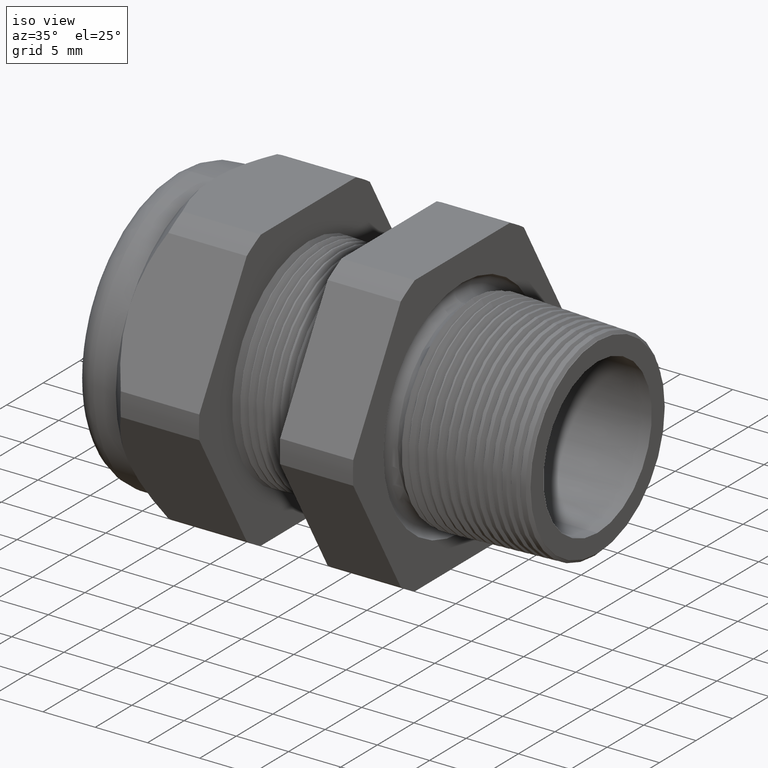
[diagram: clean part render]
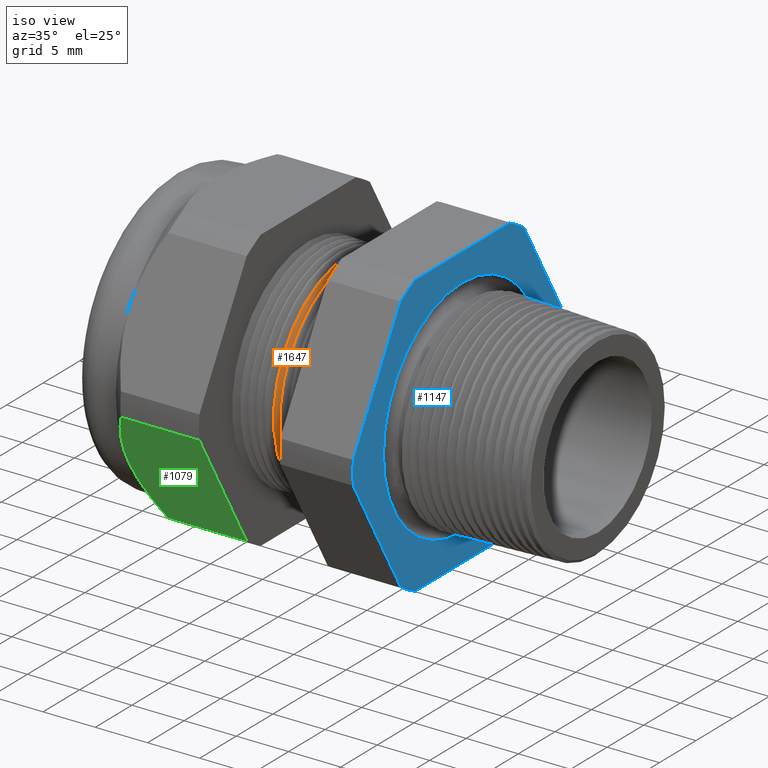
[diagram: same view with three faces highlighted in distinct colors, each labeled with its STEP entity id]
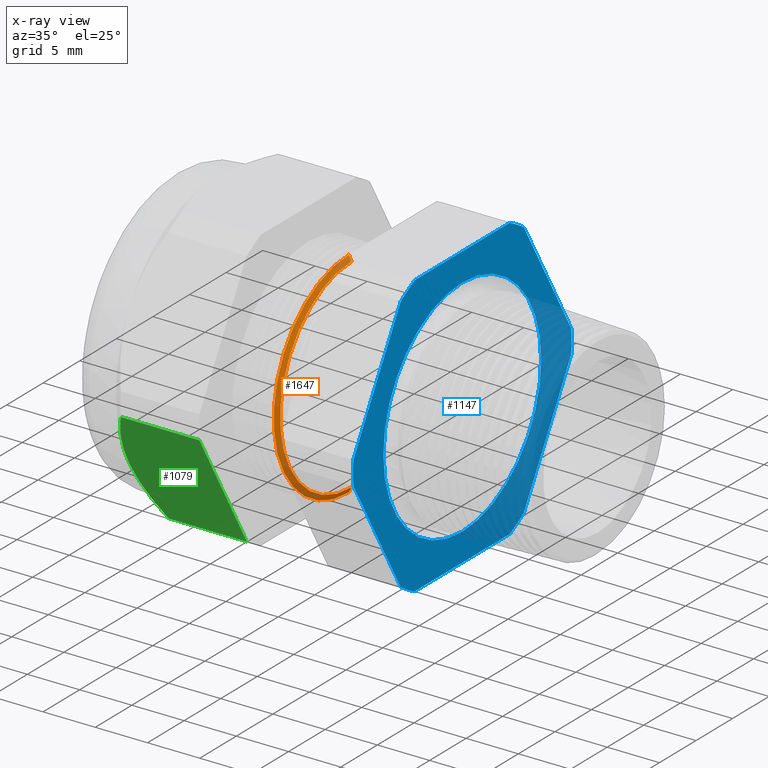
[diagram: x-ray of the same camera — body ghosted, the three highlighted faces saturated]
A machine part, iso view with three faces highlighted in distinct colors.
The next image is the same camera in x-ray (body ghosted, the three faces saturated) — at least one of them is partly hidden behind the body in this view.
Their STEP definitions:

[orange] entity #1647 — the highlighted conical surface has half-angle 62 deg.
#139 = VERTEX_POINT ( 'NONE', #2247 ) ;
#141 = EDGE_CURVE ( 'NONE', #186, #139, #2246, .T. ) ;
#145 = EDGE_CURVE ( 'NONE', #252, #146, #2241, .T. ) ;
#146 = VERTEX_POINT ( 'NONE', #2232 ) ;
#186 = VERTEX_POINT ( 'NONE', #2340 ) ;
#252 = VERTEX_POINT ( 'NONE', #2467 ) ;
#943 = EDGE_CURVE ( 'NONE', #139, #146, #3745, .T. ) ;
#1573 = EDGE_LOOP ( 'NONE', ( #1574, #1575, #1577, #1578 ) ) ;
#1574 = ORIENTED_EDGE ( 'NONE', *, *, #145, .F. ) ;
#1575 = ORIENTED_EDGE ( 'NONE', *, *, #1576, .F. ) ;
#1576 = EDGE_CURVE ( 'NONE', #186, #252, #4912, .T. ) ;
#1577 = ORIENTED_EDGE ( 'NONE', *, *, #141, .T. ) ;
#1578 = ORIENTED_EDGE ( 'NONE', *, *, #943, .T. ) ;
#1647 = ADVANCED_FACE ( 'NONE', ( #5017 ), #5016, .T. ) ;
#2232 = CARTESIAN_POINT ( 'NONE',  ( -0.7374771129433931300, 4.957090523884741100E-017, -0.4046627847513250600 ) ) ;
#2233 = DIRECTION ( 'NONE',  ( -0.4694715627859021900, 1.081298943409537900E-016, -0.8829475928589208800 ) ) ;
#2234 = VECTOR ( 'NONE', #2233, 39.37007874015748100 ) ;
#2235 = CARTESIAN_POINT ( 'NONE',  ( -0.7403149606299210800, 5.021051876504148100E-017, -0.4099999999999999800 ) ) ;
#2241 = LINE ( 'NONE', #2235, #2234 ) ;
#2243 = DIRECTION ( 'NONE',  ( -0.4694715627859021900, 0.0000000000000000000, 0.8829475928589208800 ) ) ;
#2244 = VECTOR ( 'NONE', #2243, 39.37007874015748100 ) ;
#2245 = CARTESIAN_POINT ( 'NONE',  ( -0.7403149606299210800, 0.0000000000000000000, 0.4099999999999999800 ) ) ;
#2246 = LINE ( 'NONE', #2245, #2244 ) ;
#2247 = CARTESIAN_POINT ( 'NONE',  ( -0.7374771129433931300, 0.0000000000000000000, 0.4046627847513250600 ) ) ;
#2340 = CARTESIAN_POINT ( 'NONE',  ( -0.7267624839723553200, 0.0000000000000000000, 0.3845114984791284100 ) ) ;
#2467 = CARTESIAN_POINT ( 'NONE',  ( -0.7267624839723553200, 4.832298799637908300E-017, -0.3845114984791284100 ) ) ;
#3744 = AXIS2_PLACEMENT_3D ( 'NONE', #3750, #3804, #3803 ) ;
#3745 = CIRCLE ( 'NONE', #3744, 0.4046627847513250600 ) ;
#3750 = CARTESIAN_POINT ( 'NONE',  ( -0.7374771129433931300, 0.0000000000000000000, 0.0000000000000000000 ) ) ;
#3803 = DIRECTION ( 'NONE',  ( 0.0000000000000000000, 0.0000000000000000000, 1.000000000000000000 ) ) ;
#3804 = DIRECTION ( 'NONE',  ( 1.000000000000000000, 0.0000000000000000000, 0.0000000000000000000 ) ) ;
#4909 = DIRECTION ( 'NONE',  ( 0.0000000000000000000, 0.0000000000000000000, -1.000000000000000000 ) ) ;
#4910 = DIRECTION ( 'NONE',  ( 1.000000000000000000, 0.0000000000000000000, 0.0000000000000000000 ) ) ;
#4911 = AXIS2_PLACEMENT_3D ( 'NONE', #4917, #4910, #4909 ) ;
#4912 = CIRCLE ( 'NONE', #4911, 0.3845114984791284100 ) ;
#4917 = CARTESIAN_POINT ( 'NONE',  ( -0.7267624839723553200, 0.0000000000000000000, 0.0000000000000000000 ) ) ;
#5011 = DIRECTION ( 'NONE',  ( 0.0000000000000000000, 0.0000000000000000000, 1.000000000000000000 ) ) ;
#5012 = DIRECTION ( 'NONE',  ( -1.000000000000000000, 0.0000000000000000000, 0.0000000000000000000 ) ) ;
#5013 = CARTESIAN_POINT ( 'NONE',  ( -0.7403149606299210800, 0.0000000000000000000, 0.0000000000000000000 ) ) ;
#5014 = AXIS2_PLACEMENT_3D ( 'NONE', #5013, #5012, #5011 ) ;
#5016 = CONICAL_SURFACE ( 'NONE', #5014, 0.4099999999999999800, 1.082104136236471400 ) ;
#5017 = FACE_OUTER_BOUND ( 'NONE', #1573, .T. ) ;

[blue] entity #1147 — the highlighted planar face has unit normal (1, 0, 0).
#79 = VERTEX_POINT ( 'NONE', #2154 ) ;
#80 = EDGE_CURVE ( 'NONE', #82, #79, #2153, .T. ) ;
#82 = VERTEX_POINT ( 'NONE', #2148 ) ;
#1132 = VERTEX_POINT ( 'NONE', #4170 ) ;
#1133 = ORIENTED_EDGE ( 'NONE', *, *, #1134, .T. ) ;
#1134 = EDGE_CURVE ( 'NONE', #1132, #1135, #3681, .T. ) ;
#1135 = VERTEX_POINT ( 'NONE', #4230 ) ;
#1136 = ORIENTED_EDGE ( 'NONE', *, *, #1137, .T. ) ;
#1137 = EDGE_CURVE ( 'NONE', #1135, #1138, #4229, .T. ) ;
#1138 = VERTEX_POINT ( 'NONE', #4225 ) ;
#1139 = ORIENTED_EDGE ( 'NONE', *, *, #1140, .T. ) ;
#1140 = EDGE_CURVE ( 'NONE', #1138, #1141, #4224, .T. ) ;
#1141 = VERTEX_POINT ( 'NONE', #4219 ) ;
#1142 = ORIENTED_EDGE ( 'NONE', *, *, #1143, .T. ) ;
#1143 = EDGE_CURVE ( 'NONE', #1141, #1144, #4218, .T. ) ;
#1144 = VERTEX_POINT ( 'NONE', #4214 ) ;
#1145 = ORIENTED_EDGE ( 'NONE', *, *, #1202, .T. ) ;
#1146 = VERTEX_POINT ( 'NONE', #4213 ) ;
#1147 = ADVANCED_FACE ( 'NONE', ( #4212, #4211 ), #4210, .T. ) ;
#1148 = EDGE_LOOP ( 'NONE', ( #1149, #1151 ) ) ;
#1149 = ORIENTED_EDGE ( 'NONE', *, *, #1150, .F. ) ;
#1150 = EDGE_CURVE ( 'NONE', #79, #82, #4205, .T. ) ;
#1151 = ORIENTED_EDGE ( 'NONE', *, *, #80, .F. ) ;
#1152 = EDGE_LOOP ( 'NONE', ( #1153, #1157, #1160, #1133, #1136, #1139, #1142, #1145, #1203, #1206, #1209, #1212 ) ) ;
#1153 = ORIENTED_EDGE ( 'NONE', *, *, #1154, .T. ) ;
#1154 = EDGE_CURVE ( 'NONE', #1155, #1156, #4262, .T. ) ;
#1155 = VERTEX_POINT ( 'NONE', #4258 ) ;
#1156 = VERTEX_POINT ( 'NONE', #4257 ) ;
#1157 = ORIENTED_EDGE ( 'NONE', *, *, #1158, .T. ) ;
#1158 = EDGE_CURVE ( 'NONE', #1156, #1159, #4256, .T. ) ;
#1159 = VERTEX_POINT ( 'NONE', #4251 ) ;
#1160 = ORIENTED_EDGE ( 'NONE', *, *, #1161, .T. ) ;
#1161 = EDGE_CURVE ( 'NONE', #1159, #1132, #4250, .T. ) ;
#1202 = EDGE_CURVE ( 'NONE', #1144, #1146, #4345, .T. ) ;
#1203 = ORIENTED_EDGE ( 'NONE', *, *, #1204, .T. ) ;
#1204 = EDGE_CURVE ( 'NONE', #1146, #1205, #4340, .T. ) ;
#1205 = VERTEX_POINT ( 'NONE', #4336 ) ;
#1206 = ORIENTED_EDGE ( 'NONE', *, *, #1207, .T. ) ;
#1207 = EDGE_CURVE ( 'NONE', #1205, #1208, #4335, .T. ) ;
#1208 = VERTEX_POINT ( 'NONE', #4330 ) ;
#1209 = ORIENTED_EDGE ( 'NONE', *, *, #1210, .T. ) ;
#1210 = EDGE_CURVE ( 'NONE', #1208, #1211, #4329, .T. ) ;
#1211 = VERTEX_POINT ( 'NONE', #4325 ) ;
#1212 = ORIENTED_EDGE ( 'NONE', *, *, #1213, .T. ) ;
#1213 = EDGE_CURVE ( 'NONE', #1211, #1155, #4387, .T. ) ;
#2148 = CARTESIAN_POINT ( 'NONE',  ( -0.3100000000000000000, 5.197106747389359900E-017, 0.4243759711786115300 ) ) ;
#2149 = DIRECTION ( 'NONE',  ( 0.0000000000000000000, 0.0000000000000000000, -1.000000000000000000 ) ) ;
#2150 = DIRECTION ( 'NONE',  ( 1.000000000000000000, 0.0000000000000000000, 0.0000000000000000000 ) ) ;
#2151 = CARTESIAN_POINT ( 'NONE',  ( -0.3100000000000000000, 0.0000000000000000000, 0.0000000000000000000 ) ) ;
#2152 = AXIS2_PLACEMENT_3D ( 'NONE', #2151, #2150, #2149 ) ;
#2153 = CIRCLE ( 'NONE', #2152, 0.4243759711786115300 ) ;
#2154 = CARTESIAN_POINT ( 'NONE',  ( -0.3100000000000000000, 0.0000000000000000000, -0.4243759711786115300 ) ) ;
#3681 = CIRCLE ( 'NONE', #3930, 0.5882999999999999300 ) ;
#3930 = AXIS2_PLACEMENT_3D ( 'NONE', #4169, #4232, #4231 ) ;
#4169 = CARTESIAN_POINT ( 'NONE',  ( -0.3100000000000000000, 0.0000000000000000000, 0.0000000000000000000 ) ) ;
#4170 = CARTESIAN_POINT ( 'NONE',  ( -0.3099999999999998300, 0.3313250556190263700, 0.4861281698472626500 ) ) ;
#4201 = DIRECTION ( 'NONE',  ( 0.0000000000000000000, 0.0000000000000000000, -1.000000000000000000 ) ) ;
#4202 = DIRECTION ( 'NONE',  ( 1.000000000000000000, 0.0000000000000000000, 0.0000000000000000000 ) ) ;
#4203 = CARTESIAN_POINT ( 'NONE',  ( -0.3100000000000000000, 0.0000000000000000000, 0.0000000000000000000 ) ) ;
#4204 = AXIS2_PLACEMENT_3D ( 'NONE', #4203, #4202, #4201 ) ;
#4205 = CIRCLE ( 'NONE', #4204, 0.4243759711786115300 ) ;
#4206 = DIRECTION ( 'NONE',  ( 0.0000000000000000000, 0.0000000000000000000, -1.000000000000000000 ) ) ;
#4207 = DIRECTION ( 'NONE',  ( 1.000000000000000000, 0.0000000000000000000, 0.0000000000000000000 ) ) ;
#4208 = CARTESIAN_POINT ( 'NONE',  ( -0.3100000000000000000, 1.060000000000000100, 0.0000000000000000000 ) ) ;
#4209 = AXIS2_PLACEMENT_3D ( 'NONE', #4208, #4207, #4206 ) ;
#4210 = PLANE ( 'NONE',  #4209 ) ;
#4211 = FACE_OUTER_BOUND ( 'NONE', #1152, .T. ) ;
#4212 = FACE_BOUND ( 'NONE', #1148, .T. ) ;
#4213 = CARTESIAN_POINT ( 'NONE',  ( -0.3099999999999998300, -0.5866618723924791300, -0.04387183015273715000 ) ) ;
#4214 = CARTESIAN_POINT ( 'NONE',  ( -0.3099999999999998300, -0.5866618723924791300, 0.04387183015273703200 ) ) ;
#4215 = DIRECTION ( 'NONE',  ( 0.0000000000000000000, -0.4999999999999998300, -0.8660254037844388200 ) ) ;
#4216 = VECTOR ( 'NONE', #4215, 39.37007874015748100 ) ;
#4217 = CARTESIAN_POINT ( 'NONE',  ( -0.3100000000000000000, -0.1939934640057525700, 0.7239934640057522600 ) ) ;
#4218 = LINE ( 'NONE', #4217, #4216 ) ;
#4219 = CARTESIAN_POINT ( 'NONE',  ( -0.3099999999999998300, -0.3313250556190262000, 0.4861281698472627600 ) ) ;
#4220 = DIRECTION ( 'NONE',  ( 0.0000000000000000000, 0.0000000000000000000, -1.000000000000000000 ) ) ;
#4221 = DIRECTION ( 'NONE',  ( 1.000000000000000000, 0.0000000000000000000, 0.0000000000000000000 ) ) ;
#4222 = CARTESIAN_POINT ( 'NONE',  ( -0.3100000000000000000, 0.0000000000000000000, 0.0000000000000000000 ) ) ;
#4223 = AXIS2_PLACEMENT_3D ( 'NONE', #4222, #4221, #4220 ) ;
#4224 = CIRCLE ( 'NONE', #4223, 0.5882999999999999300 ) ;
#4225 = CARTESIAN_POINT ( 'NONE',  ( -0.3099999999999998300, -0.2553368167734533200, 0.5299999999999999200 ) ) ;
#4226 = DIRECTION ( 'NONE',  ( 0.0000000000000000000, -1.000000000000000000, 0.0000000000000000000 ) ) ;
#4227 = VECTOR ( 'NONE', #4226, 39.37007874015748100 ) ;
#4228 = CARTESIAN_POINT ( 'NONE',  ( -0.3100000000000000000, 1.060000000000000100, 0.5300000000000001400 ) ) ;
#4229 = LINE ( 'NONE', #4228, #4227 ) ;
#4230 = CARTESIAN_POINT ( 'NONE',  ( -0.3099999999999998300, 0.2553368167734530500, 0.5300000000000001400 ) ) ;
#4231 = DIRECTION ( 'NONE',  ( 0.0000000000000000000, 0.0000000000000000000, -1.000000000000000000 ) ) ;
#4232 = DIRECTION ( 'NONE',  ( 1.000000000000000000, 0.0000000000000000000, 0.0000000000000000000 ) ) ;
#4247 = DIRECTION ( 'NONE',  ( 0.0000000000000000000, -0.4999999999999998300, 0.8660254037844386000 ) ) ;
#4248 = VECTOR ( 'NONE', #4247, 39.37007874015748900 ) ;
#4249 = CARTESIAN_POINT ( 'NONE',  ( -0.3100000000000000000, 0.7239934640057524900, -0.1939934640057524000 ) ) ;
#4250 = LINE ( 'NONE', #4249, #4248 ) ;
#4251 = CARTESIAN_POINT ( 'NONE',  ( -0.3099999999999998300, 0.5866618723924789100, 0.04387183015273755900 ) ) ;
#4252 = DIRECTION ( 'NONE',  ( 0.0000000000000000000, 0.0000000000000000000, -1.000000000000000000 ) ) ;
#4253 = DIRECTION ( 'NONE',  ( 1.000000000000000000, 0.0000000000000000000, 0.0000000000000000000 ) ) ;
#4254 = CARTESIAN_POINT ( 'NONE',  ( -0.3100000000000000000, 0.0000000000000000000, 0.0000000000000000000 ) ) ;
#4255 = AXIS2_PLACEMENT_3D ( 'NONE', #4254, #4253, #4252 ) ;
#4256 = CIRCLE ( 'NONE', #4255, 0.5882999999999999300 ) ;
#4257 = CARTESIAN_POINT ( 'NONE',  ( -0.3100000000000000000, 0.5866618723924790200, -0.04387183015273746900 ) ) ;
#4258 = CARTESIAN_POINT ( 'NONE',  ( -0.3099999999999998300, 0.3313250556190264200, -0.4861281698472626500 ) ) ;
#4259 = DIRECTION ( 'NONE',  ( 0.0000000000000000000, 0.4999999999999998300, 0.8660254037844386000 ) ) ;
#4260 = VECTOR ( 'NONE', #4259, 39.37007874015748900 ) ;
#4261 = CARTESIAN_POINT ( 'NONE',  ( -0.3100000000000000000, 0.7239934640057527100, 0.1939934640057523800 ) ) ;
#4262 = LINE ( 'NONE', #4261, #4260 ) ;
#4325 = CARTESIAN_POINT ( 'NONE',  ( -0.3099999999999998300, 0.2553368167734529900, -0.5300000000000001400 ) ) ;
#4326 = DIRECTION ( 'NONE',  ( 0.0000000000000000000, 1.000000000000000000, 0.0000000000000000000 ) ) ;
#4327 = VECTOR ( 'NONE', #4326, 39.37007874015748100 ) ;
#4328 = CARTESIAN_POINT ( 'NONE',  ( -0.3100000000000000000, 1.060000000000000100, -0.5300000000000001400 ) ) ;
#4329 = LINE ( 'NONE', #4328, #4327 ) ;
#4330 = CARTESIAN_POINT ( 'NONE',  ( -0.3099999999999998300, -0.2553368167734529900, -0.5300000000000001400 ) ) ;
#4331 = DIRECTION ( 'NONE',  ( 0.0000000000000000000, 0.0000000000000000000, -1.000000000000000000 ) ) ;
#4332 = DIRECTION ( 'NONE',  ( 1.000000000000000000, 0.0000000000000000000, 0.0000000000000000000 ) ) ;
#4333 = CARTESIAN_POINT ( 'NONE',  ( -0.3100000000000000000, 0.0000000000000000000, 0.0000000000000000000 ) ) ;
#4334 = AXIS2_PLACEMENT_3D ( 'NONE', #4333, #4332, #4331 ) ;
#4335 = CIRCLE ( 'NONE', #4334, 0.5883000000000000500 ) ;
#4336 = CARTESIAN_POINT ( 'NONE',  ( -0.3099999999999998300, -0.3313250556190258700, -0.4861281698472630400 ) ) ;
#4337 = DIRECTION ( 'NONE',  ( 0.0000000000000000000, 0.5000000000000001100, -0.8660254037844386000 ) ) ;
#4338 = VECTOR ( 'NONE', #4337, 39.37007874015748100 ) ;
#4339 = CARTESIAN_POINT ( 'NONE',  ( -0.3100000000000000000, -0.1939934640057525700, -0.7239934640057527100 ) ) ;
#4340 = LINE ( 'NONE', #4339, #4338 ) ;
#4341 = DIRECTION ( 'NONE',  ( 0.0000000000000000000, 0.0000000000000000000, -1.000000000000000000 ) ) ;
#4342 = DIRECTION ( 'NONE',  ( 1.000000000000000000, 0.0000000000000000000, 0.0000000000000000000 ) ) ;
#4343 = CARTESIAN_POINT ( 'NONE',  ( -0.3100000000000000000, 0.0000000000000000000, 0.0000000000000000000 ) ) ;
#4344 = AXIS2_PLACEMENT_3D ( 'NONE', #4343, #4342, #4341 ) ;
#4345 = CIRCLE ( 'NONE', #4344, 0.5883000000000000500 ) ;
#4383 = DIRECTION ( 'NONE',  ( 0.0000000000000000000, 0.0000000000000000000, -1.000000000000000000 ) ) ;
#4384 = DIRECTION ( 'NONE',  ( 1.000000000000000000, 0.0000000000000000000, 0.0000000000000000000 ) ) ;
#4385 = CARTESIAN_POINT ( 'NONE',  ( -0.3100000000000000000, 0.0000000000000000000, 0.0000000000000000000 ) ) ;
#4386 = AXIS2_PLACEMENT_3D ( 'NONE', #4385, #4384, #4383 ) ;
#4387 = CIRCLE ( 'NONE', #4386, 0.5882999999999999300 ) ;

[green] entity #1079 — the highlighted planar face has unit normal (0, -0.866, -0.5).
#1009 = ORIENTED_EDGE ( 'NONE', *, *, #1063, .F. ) ;
#1018 = EDGE_CURVE ( 'NONE', #1019, #1020, #3899, .T. ) ;
#1019 = VERTEX_POINT ( 'NONE', #3959 ) ;
#1020 = VERTEX_POINT ( 'NONE', #3958 ) ;
#1024 = EDGE_LOOP ( 'NONE', ( #1080, #1084, #1087, #1089, #1009 ) ) ;
#1063 = EDGE_CURVE ( 'NONE', #1082, #1019, #4030, .T. ) ;
#1079 = ADVANCED_FACE ( 'NONE', ( #4051 ), #4050, .T. ) ;
#1080 = ORIENTED_EDGE ( 'NONE', *, *, #1081, .T. ) ;
#1081 = EDGE_CURVE ( 'NONE', #1082, #1083, #4103, .T. ) ;
#1082 = VERTEX_POINT ( 'NONE', #4099 ) ;
#1083 = VERTEX_POINT ( 'NONE', #4098 ) ;
#1084 = ORIENTED_EDGE ( 'NONE', *, *, #1085, .T. ) ;
#1085 = EDGE_CURVE ( 'NONE', #1083, #1086, #4097, .T. ) ;
#1086 = VERTEX_POINT ( 'NONE', #4096 ) ;
#1087 = ORIENTED_EDGE ( 'NONE', *, *, #1088, .T. ) ;
#1088 = EDGE_CURVE ( 'NONE', #1086, #1020, #4085, .T. ) ;
#1089 = ORIENTED_EDGE ( 'NONE', *, *, #1018, .F. ) ;
#3899 = LINE ( 'NONE', #3962, #3961 ) ;
#3958 = CARTESIAN_POINT ( 'NONE',  ( -1.186345669291338800, -0.3313250556190259800, -0.4861281698472632000 ) ) ;
#3959 = CARTESIAN_POINT ( 'NONE',  ( -0.8903149606299207700, -0.3313250556190258700, -0.4861281698472630400 ) ) ;
#3960 = DIRECTION ( 'NONE',  ( -1.000000000000000000, 0.0000000000000000000, 0.0000000000000000000 ) ) ;
#3961 = VECTOR ( 'NONE', #3960, 39.37007874015748100 ) ;
#3962 = CARTESIAN_POINT ( 'NONE',  ( 0.2000000000000000400, -0.3313250556190258700, -0.4861281698472630400 ) ) ;
#4023 = DIRECTION ( 'NONE',  ( 0.0000000000000000000, 0.5000000000000001100, -0.8660254037844386000 ) ) ;
#4024 = VECTOR ( 'NONE', #4023, 39.37007874015748100 ) ;
#4025 = CARTESIAN_POINT ( 'NONE',  ( -0.8903149606299211000, -0.3564934640057523800, -0.4425352077758099600 ) ) ;
#4030 = LINE ( 'NONE', #4025, #4024 ) ;
#4050 = PLANE ( 'NONE',  #4107 ) ;
#4051 = FACE_OUTER_BOUND ( 'NONE', #1024, .T. ) ;
#4080 = CARTESIAN_POINT ( 'NONE',  ( -1.218775221355474100, -0.3726775389205835300, -0.4145035677498215600 ) ) ;
#4081 = CARTESIAN_POINT ( 'NONE',  ( -1.239068638379755300, -0.4152540171503035200, -0.3407589442485966000 ) ) ;
#4082 = CARTESIAN_POINT ( 'NONE',  ( -1.244645669291338600, -0.4369033769668390100, -0.3032611530950171100 ) ) ;
#4083 = CARTESIAN_POINT ( 'NONE',  ( -1.244645669291338600, -0.4589934640057526900, -0.2650000000000002400 ) ) ;
#4085 = B_SPLINE_CURVE_WITH_KNOTS ( 'NONE', 3,
 ( #4083, #4082, #4081, #4080, #4138, #4137 ),
 .UNSPECIFIED., .F., .F.,
 ( 4, 2, 4 ),
 ( 0.006656663749350002400, 0.009982589261723353100, 0.01330851477409670700 ),
 .UNSPECIFIED. ) ;
#4086 = CARTESIAN_POINT ( 'NONE',  ( -1.244645669291338600, -0.4589934640057526900, -0.2650000000000002400 ) ) ;
#4087 = CARTESIAN_POINT ( 'NONE',  ( -1.244645669291338600, -0.4645197752363698400, -0.2554281481701323700 ) ) ;
#4088 = CARTESIAN_POINT ( 'NONE',  ( -1.244295942806246300, -0.4700966316160715100, -0.2457687495739749000 ) ) ;
#4089 = CARTESIAN_POINT ( 'NONE',  ( -1.242906896935582500, -0.4811768528785424500, -0.2265772433882701500 ) ) ;
#4090 = CARTESIAN_POINT ( 'NONE',  ( -1.241872120295196800, -0.4866745645865461800, -0.2170549273846412200 ) ) ;
#4091 = CARTESIAN_POINT ( 'NONE',  ( -1.237808639247385300, -0.5030481801450607000, -0.1886949933336943300 ) ) ;
#4092 = CARTESIAN_POINT ( 'NONE',  ( -1.233820484782344600, -0.5138045271803671800, -0.1700644537646999700 ) ) ;
#4093 = CARTESIAN_POINT ( 'NONE',  ( -1.218547870590924300, -0.5456613404998794700, -0.1148868345280680100 ) ) ;
#4094 = CARTESIAN_POINT ( 'NONE',  ( -1.203975554148896100, -0.5663521078376416700, -0.07904937425147717800 ) ) ;
#4095 = CARTESIAN_POINT ( 'NONE',  ( -1.186345669291338800, -0.5866618723924791300, -0.04387183015273715000 ) ) ;
#4096 = CARTESIAN_POINT ( 'NONE',  ( -1.244645669291338600, -0.4589934640057526900, -0.2650000000000002400 ) ) ;
#4097 = B_SPLINE_CURVE_WITH_KNOTS ( 'NONE', 3,
 ( #4095, #4094, #4093, #4092, #4091, #4090, #4089, #4088, #4087, #4086 ),
 .UNSPECIFIED., .F., .F.,
 ( 4, 2, 2, 2, 4 ),
 ( 2.483250567256025300E-007, 0.003328456037203366700, 0.004992559893276685000, 0.005824611821313343200, 0.006656663749350002400 ),
 .UNSPECIFIED. ) ;
#4098 = CARTESIAN_POINT ( 'NONE',  ( -1.186345669291338800, -0.5866618723924791300, -0.04387183015273715000 ) ) ;
#4099 = CARTESIAN_POINT ( 'NONE',  ( -0.8903149606299207700, -0.5866618723924791300, -0.04387183015273715000 ) ) ;
#4100 = DIRECTION ( 'NONE',  ( -1.000000000000000000, 0.0000000000000000000, 0.0000000000000000000 ) ) ;
#4101 = VECTOR ( 'NONE', #4100, 39.37007874015748100 ) ;
#4102 = CARTESIAN_POINT ( 'NONE',  ( 0.2000000000000000400, -0.5866618723924791300, -0.04387183015273715000 ) ) ;
#4103 = LINE ( 'NONE', #4102, #4101 ) ;
#4104 = DIRECTION ( 'NONE',  ( 0.0000000000000000000, 0.5000000000000001100, -0.8660254037844386000 ) ) ;
#4105 = DIRECTION ( 'NONE',  ( 0.0000000000000000000, -0.8660254037844386000, -0.5000000000000001100 ) ) ;
#4106 = CARTESIAN_POINT ( 'NONE',  ( 0.2000000000000000400, -0.3313250556190259800, -0.4861281698472630400 ) ) ;
#4107 = AXIS2_PLACEMENT_3D ( 'NONE', #4106, #4105, #4104 ) ;
#4137 = CARTESIAN_POINT ( 'NONE',  ( -1.186345669291338800, -0.3313250556190259800, -0.4861281698472632000 ) ) ;
#4138 = CARTESIAN_POINT ( 'NONE',  ( -1.203997386286414400, -0.3516599709661860600, -0.4509070632983699400 ) ) ;